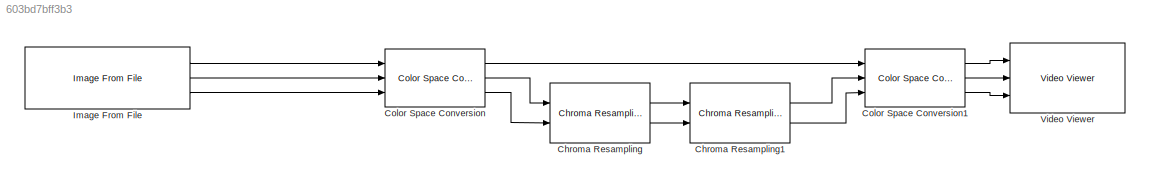
MODEL slx_603bd7bff3b3
KIND model
BLOCK [Reference] Chroma Resampling  REF=visionconversions/Chroma
Resampling
  Ports = [2, 2]
  SourceBlock = visionconversions/Chroma\nResampling
  SourceType = Chroma Resampling
  antialiasing = Default
  hcoeff = [0.2 0.6 0.2]
  interpolation = pixel replication
  isInputTransposed = off
  resampling = 4:4:4 to 4:2:2
  vcoeff = [0.5 0.5]
BLOCK [Reference] Chroma Resampling1  REF=visionconversions/Chroma
Resampling
  Ports = [2, 2]
  SourceBlock = visionconversions/Chroma\nResampling
  SourceType = Chroma Resampling
  antialiasing = Default
  hcoeff = [0.2 0.6 0.2]
  interpolation = linear
  isInputTransposed = off
  resampling = 4:2:2 to 4:4:4
  vcoeff = [0.5 0.5]
BLOCK [Reference] Color Space Conversion  REF=visionconversions/Color Space
 Conversion
  Ports = [3, 3]
  SourceBlock = visionconversions/Color Space\n Conversion
  SourceType = Color Space Conversion
  conversion = Obsolete
  conversionActive = R'G'B' to Y'CbCr
  imagePorts = Separate color signals
  rec = Rec. 601 (SDTV)
  sys = 1125/60/2:1
  wp_str = D65
BLOCK [Reference] Color Space Conversion1  REF=visionconversions/Color Space
 Conversion
  Ports = [3, 3]
  SourceBlock = visionconversions/Color Space\n Conversion
  SourceType = Color Space Conversion
  conversion = Obsolete
  conversionActive = Y'CbCr to R'G'B'
  imagePorts = Separate color signals
  rec = Rec. 601 (SDTV)
  sys = 1125/60/2:1
  wp_str = D65
BLOCK [Reference] Image From File  REF=visionsources/Image From File
  FileName = peppers.png
  FractionLength = 15
  FractionLengthMode = User-defined
  ImageDataType = double
  OutPortLabels = R|G|B
  Ports = [0, 3]
  Signed = on
  SourceBlock = visionsources/Image From File
  SourceType = Image From File
  Tag = vipblks_nd
  Ts = inf
  WordLength = 16
  imagePorts = Separate color signals
  sdImageDataType = uint(8)
BLOCK [Reference] Video Viewer  REF=visionsinks/Video Viewer
  AxisZoom = on
  DefaultConfigurationName = vipscopes.VideoViewerScopeCfg
  FigPos = [163 697 410 300]
  OpenAtMdlStart = on
  Ports = [3]
  SourceBlock = visionsinks/Video Viewer
  SourceType = Video Viewer
  UserDataPersistent = on
  colormapValue = jet(256)
  imagePorts = Separate color signals
  inputType = Obsolete7b
  maxInputVal = 255
  minInputVal = 0
  specRange = off
  trueSizedOnce = off
  useColorMap = off
LINE Chroma Resampling1:1 -> Color Space Conversion1:2
LINE Chroma Resampling1:2 -> Color Space Conversion1:3
LINE Chroma Resampling:1 -> Chroma Resampling1:1
LINE Chroma Resampling:2 -> Chroma Resampling1:2
LINE Color Space Conversion1:1 -> Video Viewer:1
LINE Color Space Conversion1:2 -> Video Viewer:2
LINE Color Space Conversion1:3 -> Video Viewer:3
LINE Color Space Conversion:1 -> Color Space Conversion1:1
LINE Color Space Conversion:2 -> Chroma Resampling:1
LINE Color Space Conversion:3 -> Chroma Resampling:2
LINE Image From File:1 -> Color Space Conversion:1
LINE Image From File:2 -> Color Space Conversion:2
LINE Image From File:3 -> Color Space Conversion:3
